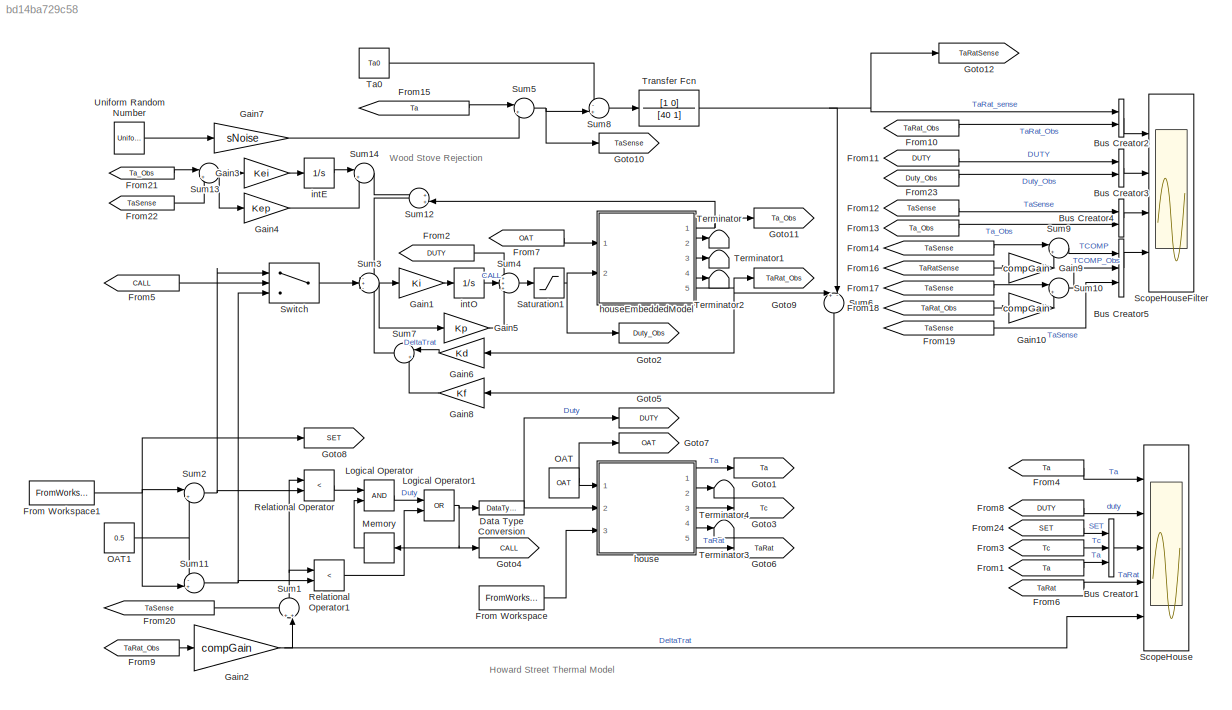
MODEL slx_bd14ba729c58
KIND model
CONFIG InitFcn = Ta0=Temp;\nTw0 = (Temp*Ha + OAT*Ho)/(Ho+Ha);\nTb0=max(min(interp1([Rn Rx],[Tn Tx],OAT), Tn),Tx);\nTc0 = ((Ha+Hc)*Ta0 - Ha*Tw0) / Hc;\nD0 =max(min( Hc*(Tc0-Ta0)/(Hf*(Tb0-Tc0)), 1), 1e-32);\n\n
CONFIG PreLoadFcn = OAT=30;\nTemp=68;\n\nRn=29;\nRx=69;\nTn=180;\nTx=120;\n\nHc=114/86400;\nHa=1.61/86400;\n%Hf=1.08/86400;\nHf=1.745/86400;\nHo=283/86400;\n\ntau=40;\nFILTER_DELAY = 5;\n\nK2=1;\nK3=1;\nKi=1e-5;\nKp=2;\nKd=800;\nKf=1;\ncompGain=400;  % gain in TCOMP of house control\nKei=Ki*2;\nKep=Kp*2;\n\n% From match to thermo20160128.xlsx\nsNoise=0.001;\nSET = [0 60 18861 18862; 68 62 68 68]';\notherHeat=[0 1000 6000; .0002 .001 .0005]';\ntFin...<+13ch>
BLOCK [BusCreator] Bus Creator1
  DisplayOption = bar
  Inputs = 3
  Ports = [3, 1]
BLOCK [BusCreator] Bus Creator2
  DisplayOption = bar
  Inputs = 2
  Ports = [2, 1]
BLOCK [BusCreator] Bus Creator3
  DisplayOption = bar
  Inputs = 2
  Ports = [2, 1]
BLOCK [BusCreator] Bus Creator4
  DisplayOption = bar
  Inputs = 2
  Ports = [2, 1]
BLOCK [BusCreator] Bus Creator5
  DisplayOption = bar
  Inputs = 3
  Ports = [3, 1]
BLOCK [DataTypeConversion] Data Type Conversion
  OutDataTypeStr = double
  RndMeth = Floor
  SaturateOnIntegerOverflow = off
BLOCK [FromWorkspace] From Workspace
  OutputAfterFinalValue = Holding final value
  SampleTime = 1
  VariableName = otherHeat
  ZeroCross = on
BLOCK [FromWorkspace] From Workspace1
  OutputAfterFinalValue = Holding final value
  SampleTime = 1
  VariableName = SET
  ZeroCross = on
BLOCK [From] From1
  GotoTag = Ta
  TagVisibility = global
BLOCK [From] From10
  GotoTag = TaRat_Obs
  TagVisibility = global
BLOCK [From] From11
  GotoTag = DUTY
  TagVisibility = global
BLOCK [From] From12
  GotoTag = TaSense
  TagVisibility = global
BLOCK [From] From13
  GotoTag = Ta_Obs
  TagVisibility = global
BLOCK [From] From14
  CloseFcn = tagdialog Close
  GotoTag = TaSense
  TagVisibility = global
BLOCK [From] From15
  CloseFcn = tagdialog Close
  GotoTag = Ta
  TagVisibility = global
BLOCK [From] From16
  CloseFcn = tagdialog Close
  GotoTag = TaRatSense
  TagVisibility = global
BLOCK [From] From17
  CloseFcn = tagdialog Close
  GotoTag = TaSense
  TagVisibility = global
BLOCK [From] From18
  CloseFcn = tagdialog Close
  GotoTag = TaRat_Obs
  TagVisibility = global
BLOCK [From] From19
  CloseFcn = tagdialog Close
  GotoTag = TaSense
  TagVisibility = global
BLOCK [From] From2
  GotoTag = DUTY
  TagVisibility = global
BLOCK [From] From20
  CloseFcn = tagdialog Close
  GotoTag = TaSense
  TagVisibility = global
BLOCK [From] From21
  GotoTag = Ta_Obs
  TagVisibility = global
BLOCK [From] From22
  CloseFcn = tagdialog Close
  GotoTag = TaSense
  TagVisibility = global
BLOCK [From] From23
  GotoTag = Duty_Obs
  TagVisibility = global
BLOCK [From] From24
  GotoTag = SET
  TagVisibility = global
BLOCK [From] From3
  GotoTag = Tc
  TagVisibility = global
BLOCK [From] From4
  GotoTag = Ta
  TagVisibility = global
BLOCK [From] From5
  GotoTag = CALL
  TagVisibility = global
BLOCK [From] From6
  GotoTag = TaRat
  TagVisibility = global
BLOCK [From] From7
  GotoTag = OAT
  TagVisibility = global
BLOCK [From] From8
  GotoTag = DUTY
  TagVisibility = global
BLOCK [From] From9
  GotoTag = TaRat_Obs
  TagVisibility = global
BLOCK [Gain] Gain1
  Gain = Ki
  OutDataTypeStr = Inherit: Inherit via internal rule
  ParamDataTypeStr = Inherit: Inherit via internal rule
  SaturateOnIntegerOverflow = off
BLOCK [Gain] Gain10
  Gain = compGain
  OutDataTypeStr = Inherit: Inherit via internal rule
  ParamDataTypeStr = Inherit: Inherit via internal rule
  SaturateOnIntegerOverflow = off
BLOCK [Gain] Gain2
  Gain = compGain
  OutDataTypeStr = Inherit: Inherit via internal rule
  ParamDataTypeStr = Inherit: Inherit via internal rule
  SaturateOnIntegerOverflow = off
BLOCK [Gain] Gain3
  Gain = Kei
  OutDataTypeStr = Inherit: Inherit via internal rule
  ParamDataTypeStr = Inherit: Inherit via internal rule
  SaturateOnIntegerOverflow = off
BLOCK [Gain] Gain4
  Gain = Kep
  OutDataTypeStr = Inherit: Inherit via internal rule
  ParamDataTypeStr = Inherit: Inherit via internal rule
  SaturateOnIntegerOverflow = off
BLOCK [Gain] Gain5
  Gain = Kp
  OutDataTypeStr = Inherit: Inherit via internal rule
  ParamDataTypeStr = Inherit: Inherit via internal rule
  SaturateOnIntegerOverflow = off
BLOCK [Gain] Gain6
  Gain = Kd
  OutDataTypeStr = Inherit: Inherit via internal rule
  ParamDataTypeStr = Inherit: Inherit via internal rule
  SaturateOnIntegerOverflow = off
BLOCK [Gain] Gain7
  Gain = sNoise
  OutDataTypeStr = Inherit: Inherit via internal rule
  ParamDataTypeStr = Inherit: Inherit via internal rule
  SaturateOnIntegerOverflow = off
BLOCK [Gain] Gain8
  Gain = Kf
  OutDataTypeStr = Inherit: Inherit via internal rule
  ParamDataTypeStr = Inherit: Inherit via internal rule
  SaturateOnIntegerOverflow = off
BLOCK [Gain] Gain9
  Gain = compGain
  OutDataTypeStr = Inherit: Inherit via internal rule
  ParamDataTypeStr = Inherit: Inherit via internal rule
  SaturateOnIntegerOverflow = off
BLOCK [Goto] Goto1
  GotoTag = Ta
  TagVisibility = global
BLOCK [Goto] Goto10
  GotoTag = TaSense
  TagVisibility = global
BLOCK [Goto] Goto11
  GotoTag = Ta_Obs
  TagVisibility = global
BLOCK [Goto] Goto12
  GotoTag = TaRatSense
  TagVisibility = global
BLOCK [Goto] Goto2
  GotoTag = Duty_Obs
  TagVisibility = global
BLOCK [Goto] Goto3
  GotoTag = Tc
  TagVisibility = global
BLOCK [Goto] Goto4
  GotoTag = CALL
  TagVisibility = global
BLOCK [Goto] Goto5
  GotoTag = DUTY
  TagVisibility = global
BLOCK [Goto] Goto6
  GotoTag = TaRat
  TagVisibility = global
BLOCK [Goto] Goto7
  GotoTag = OAT
  TagVisibility = global
BLOCK [Goto] Goto8
  GotoTag = SET
  TagVisibility = global
BLOCK [Goto] Goto9
  GotoTag = TaRat_Obs
  TagVisibility = global
BLOCK [Logic] Logical Operator
  AllPortsSameDT = off
  OutDataTypeStr = boolean
  Ports = [2, 1]
BLOCK [Logic] Logical Operator1
  AllPortsSameDT = off
  Operator = OR
  OutDataTypeStr = boolean
  Ports = [2, 1]
BLOCK [Memory] Memory
BLOCK [Constant] OAT
  Value = OAT
BLOCK [Constant] OAT1
  Value = 0.5
BLOCK [RelationalOperator] Relational Operator
  InputSameDT = off
  Operator = <
  OutDataTypeStr = boolean
  Ports = [2, 1]
BLOCK [RelationalOperator] Relational Operator1
  InputSameDT = off
  Operator = <
  OutDataTypeStr = boolean
  Ports = [2, 1]
BLOCK [Saturate] Saturation1
  InputPortMap = u0
  LowerLimit = 1e-32
  Ports = [1, 1]
  UpperLimit = 1.0
BLOCK [Scope] ScopeHouse
  DataFormat = StructureWithTime
  Decimation = 2
  Floating = off
  LegendLocations = 0.88577     0.91176    0.088861    0.031476\n 0.8777     0.72601    0.097622    0.031476\n0.89256     0.43163    0.098874    0.079979\n0.86617     0.35604     0.11014    0.031476\n0.85002     0.17183     0.12766    0.031476
  LimitDataPoints = off
  NumInputPorts = 5
  Ports = [5]
  SampleTime = 0
  ShowLegends = on
  YMax = 75~70~5~5~5
  YMin = -75~-40~-5~-5~-5
  ZoomMode = yonly
BLOCK [Scope] ScopeHouseFilter
  DataFormat = StructureWithTime
  Decimation = 2
  Floating = off
  LegendLocations = 0.84979     0.89866     0.12043    0.049861\n0.86657     0.66459     0.10365    0.049861\n0.87052      0.4319    0.099704    0.049861\n0.85077     0.17613     0.11945     0.07156
  LimitDataPoints = off
  NumInputPorts = 4
  Ports = [4]
  SampleTime = 0
  SaveName = ScopeData4
  ShowLegends = on
  YMax = 75~70~10~5
  YMin = -75~-40~-10~-5
BLOCK [Sum] Sum1
  IconShape = round
  InputSameDT = off
  Inputs = ++|
  OutDataTypeStr = Inherit: Inherit via internal rule
  Ports = [2, 1]
  SaturateOnIntegerOverflow = off
BLOCK [Sum] Sum10
  IconShape = round
  InputSameDT = off
  Inputs = |++
  OutDataTypeStr = Inherit: Inherit via internal rule
  Ports = [2, 1]
  SaturateOnIntegerOverflow = off
BLOCK [Sum] Sum11
  IconShape = round
  InputSameDT = off
  Inputs = -+|
  OutDataTypeStr = Inherit: Inherit via internal rule
  Ports = [2, 1]
  SaturateOnIntegerOverflow = off
BLOCK [Sum] Sum12
  IconShape = round
  InputSameDT = off
  Inputs = ++|
  OutDataTypeStr = Inherit: Inherit via internal rule
  Ports = [2, 1]
  SaturateOnIntegerOverflow = off
BLOCK [Sum] Sum13
  IconShape = round
  InputSameDT = off
  Inputs = |+-
  OutDataTypeStr = Inherit: Inherit via internal rule
  Ports = [2, 1]
  SaturateOnIntegerOverflow = off
BLOCK [Sum] Sum14
  IconShape = round
  InputSameDT = off
  Inputs = |++
  OutDataTypeStr = Inherit: Inherit via internal rule
  Ports = [2, 1]
  SaturateOnIntegerOverflow = off
BLOCK [Sum] Sum2
  IconShape = round
  InputSameDT = off
  Inputs = |++
  OutDataTypeStr = Inherit: Inherit via internal rule
  Ports = [2, 1]
  SaturateOnIntegerOverflow = off
BLOCK [Sum] Sum3
  IconShape = round
  InputSameDT = off
  Inputs = -+-
  OutDataTypeStr = Inherit: Inherit via internal rule
  Ports = [3, 1]
  SaturateOnIntegerOverflow = off
BLOCK [Sum] Sum4
  IconShape = round
  InputSameDT = off
  Inputs = +++
  OutDataTypeStr = Inherit: Inherit via internal rule
  Ports = [3, 1]
  SaturateOnIntegerOverflow = off
BLOCK [Sum] Sum5
  IconShape = round
  InputSameDT = off
  Inputs = |++
  OutDataTypeStr = Inherit: Inherit via internal rule
  Ports = [2, 1]
  SaturateOnIntegerOverflow = off
BLOCK [Sum] Sum6
  IconShape = round
  InputSameDT = off
  Inputs = +-|
  OutDataTypeStr = Inherit: Inherit via internal rule
  Ports = [2, 1]
  SaturateOnIntegerOverflow = off
BLOCK [Sum] Sum7
  IconShape = round
  InputSameDT = off
  Inputs = |++
  OutDataTypeStr = Inherit: Inherit via internal rule
  Ports = [2, 1]
  SaturateOnIntegerOverflow = off
BLOCK [Sum] Sum8
  IconShape = round
  InputSameDT = off
  Inputs = -+|
  OutDataTypeStr = Inherit: Inherit via internal rule
  Ports = [2, 1]
  SaturateOnIntegerOverflow = off
BLOCK [Sum] Sum9
  IconShape = round
  InputSameDT = off
  Inputs = |++
  OutDataTypeStr = Inherit: Inherit via internal rule
  Ports = [2, 1]
  SaturateOnIntegerOverflow = off
BLOCK [Switch] Switch
  Criteria = u2 ~= 0
  InputSameDT = off
  SaturateOnIntegerOverflow = off
BLOCK [Constant] Ta0
  Value = Ta0
BLOCK [Terminator] Terminator
BLOCK [Terminator] Terminator1
BLOCK [Terminator] Terminator2
BLOCK [Terminator] Terminator3
BLOCK [Terminator] Terminator4
BLOCK [TransferFcn] Transfer Fcn
  Denominator = [40 1]
  Numerator = [1 0]
BLOCK [UniformRandomNumber] Uniform Random Number
  SampleTime = FILTER_DELAY
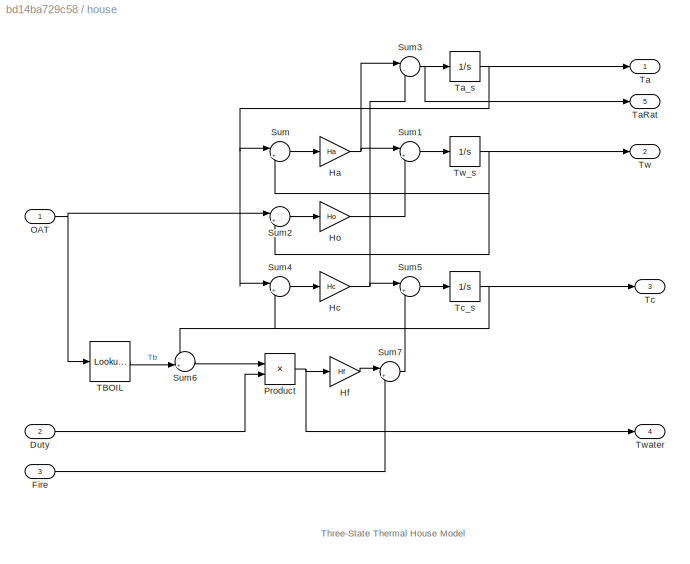
BLOCK [SubSystem] house
  FunctionWithSeparateData = off
  MaskHideContents = off
  MinAlgLoopOccurrences = off
  Opaque = off
  Ports = [3, 5]
  PropExecContextOutsideSubsystem = off
  RTWSystemCode = Auto
  RequestExecContextInheritance = off
BLOCK [Inport] house/Duty
  IconDisplay = Port number
  Port = 2
BLOCK [Inport] house/Fire
  IconDisplay = Port number
  Port = 3
BLOCK [Gain] house/Ha
  Gain = Ha
  OutDataTypeStr = Inherit: Inherit via internal rule
  ParamDataTypeStr = Inherit: Inherit via internal rule
  SaturateOnIntegerOverflow = off
BLOCK [Gain] house/Hc
  Gain = Hc
  OutDataTypeStr = Inherit: Inherit via internal rule
  ParamDataTypeStr = Inherit: Inherit via internal rule
  SaturateOnIntegerOverflow = off
BLOCK [Gain] house/Hf
  Gain = Hf
  OutDataTypeStr = Inherit: Inherit via internal rule
  ParamDataTypeStr = Inherit: Inherit via internal rule
  SaturateOnIntegerOverflow = off
BLOCK [Gain] house/Ho
  Gain = Ho
  OutDataTypeStr = Inherit: Inherit via internal rule
  ParamDataTypeStr = Inherit: Inherit via internal rule
  SaturateOnIntegerOverflow = off
BLOCK [Inport] house/OAT
  IconDisplay = Port number
BLOCK [Product] house/Product
  InputSameDT = off
  OutDataTypeStr = Inherit: Inherit via internal rule
  Ports = [2, 1]
  RndMeth = Floor
  SaturateOnIntegerOverflow = off
BLOCK [Sum] house/Sum
  IconShape = round
  InputSameDT = off
  Inputs = |+-
  OutDataTypeStr = Inherit: Inherit via internal rule
  Ports = [2, 1]
  SaturateOnIntegerOverflow = off
BLOCK [Sum] house/Sum1
  IconShape = round
  InputSameDT = off
  Inputs = |++
  OutDataTypeStr = Inherit: Inherit via internal rule
  Ports = [2, 1]
  SaturateOnIntegerOverflow = off
BLOCK [Sum] house/Sum2
  IconShape = round
  InputSameDT = off
  Inputs = |+-
  OutDataTypeStr = Inherit: Inherit via internal rule
  Ports = [2, 1]
  SaturateOnIntegerOverflow = off
BLOCK [Sum] house/Sum3
  IconShape = round
  InputSameDT = off
  Inputs = |--
  OutDataTypeStr = Inherit: Inherit via internal rule
  Ports = [2, 1]
  SaturateOnIntegerOverflow = off
BLOCK [Sum] house/Sum4
  IconShape = round
  InputSameDT = off
  Inputs = |+-
  OutDataTypeStr = Inherit: Inherit via internal rule
  Ports = [2, 1]
  SaturateOnIntegerOverflow = off
BLOCK [Sum] house/Sum5
  IconShape = round
  InputSameDT = off
  Inputs = |++
  OutDataTypeStr = Inherit: Inherit via internal rule
  Ports = [2, 1]
  SaturateOnIntegerOverflow = off
BLOCK [Sum] house/Sum6
  IconShape = round
  InputSameDT = off
  Inputs = -+|
  OutDataTypeStr = Inherit: Inherit via internal rule
  Ports = [2, 1]
  SaturateOnIntegerOverflow = off
BLOCK [Sum] house/Sum7
  IconShape = round
  InputSameDT = off
  Inputs = |++
  OutDataTypeStr = Inherit: Inherit via internal rule
  Ports = [2, 1]
  SaturateOnIntegerOverflow = off
BLOCK [Lookup_n-D] house/TBOIL
  BreakpointsForDimension1 = [Rn Rx]
  ExtrapMethod = Clip
  NumberOfTableDimensions = 1
  Ports = [1, 1]
  RndMeth = Simplest
  Table = [Tn Tx]
BLOCK [Outport] house/Ta
  IconDisplay = Port number
BLOCK [Outport] house/TaRat
  IconDisplay = Port number
  Port = 5
BLOCK [Integrator] house/Ta_s
  InitialCondition = Ta0
  Ports = [1, 1]
BLOCK [Outport] house/Tc
  IconDisplay = Port number
  Port = 3
BLOCK [Integrator] house/Tc_s
  InitialCondition = Tc0
  Ports = [1, 1]
BLOCK [Outport] house/Tw
  IconDisplay = Port number
  Port = 2
BLOCK [Integrator] house/Tw_s
  InitialCondition = Tw0
  Ports = [1, 1]
BLOCK [Outport] house/Twater
  IconDisplay = Port number
  Port = 4
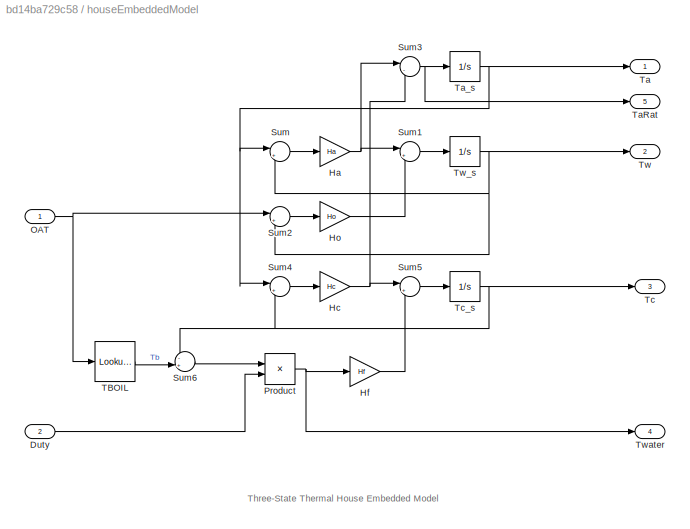
BLOCK [SubSystem] houseEmbeddedModel
  FunctionWithSeparateData = off
  MaskHideContents = off
  MinAlgLoopOccurrences = off
  Opaque = off
  Ports = [2, 5]
  PropExecContextOutsideSubsystem = off
  RTWSystemCode = Auto
  RequestExecContextInheritance = off
BLOCK [Inport] houseEmbeddedModel/Duty
  IconDisplay = Port number
  Port = 2
BLOCK [Gain] houseEmbeddedModel/Ha
  Gain = Ha
  OutDataTypeStr = Inherit: Inherit via internal rule
  ParamDataTypeStr = Inherit: Inherit via internal rule
  SaturateOnIntegerOverflow = off
BLOCK [Gain] houseEmbeddedModel/Hc
  Gain = Hc
  OutDataTypeStr = Inherit: Inherit via internal rule
  ParamDataTypeStr = Inherit: Inherit via internal rule
  SaturateOnIntegerOverflow = off
BLOCK [Gain] houseEmbeddedModel/Hf
  Gain = Hf
  OutDataTypeStr = Inherit: Inherit via internal rule
  ParamDataTypeStr = Inherit: Inherit via internal rule
  SaturateOnIntegerOverflow = off
BLOCK [Gain] houseEmbeddedModel/Ho
  Gain = Ho
  OutDataTypeStr = Inherit: Inherit via internal rule
  ParamDataTypeStr = Inherit: Inherit via internal rule
  SaturateOnIntegerOverflow = off
BLOCK [Inport] houseEmbeddedModel/OAT
  IconDisplay = Port number
BLOCK [Product] houseEmbeddedModel/Product
  InputSameDT = off
  OutDataTypeStr = Inherit: Inherit via internal rule
  Ports = [2, 1]
  RndMeth = Floor
  SaturateOnIntegerOverflow = off
BLOCK [Sum] houseEmbeddedModel/Sum
  IconShape = round
  InputSameDT = off
  Inputs = |+-
  OutDataTypeStr = Inherit: Inherit via internal rule
  Ports = [2, 1]
  SaturateOnIntegerOverflow = off
BLOCK [Sum] houseEmbeddedModel/Sum1
  IconShape = round
  InputSameDT = off
  Inputs = |++
  OutDataTypeStr = Inherit: Inherit via internal rule
  Ports = [2, 1]
  SaturateOnIntegerOverflow = off
BLOCK [Sum] houseEmbeddedModel/Sum2
  IconShape = round
  InputSameDT = off
  Inputs = |+-
  OutDataTypeStr = Inherit: Inherit via internal rule
  Ports = [2, 1]
  SaturateOnIntegerOverflow = off
BLOCK [Sum] houseEmbeddedModel/Sum3
  IconShape = round
  InputSameDT = off
  Inputs = |--
  OutDataTypeStr = Inherit: Inherit via internal rule
  Ports = [2, 1]
  SaturateOnIntegerOverflow = off
BLOCK [Sum] houseEmbeddedModel/Sum4
  IconShape = round
  InputSameDT = off
  Inputs = |+-
  OutDataTypeStr = Inherit: Inherit via internal rule
  Ports = [2, 1]
  SaturateOnIntegerOverflow = off
BLOCK [Sum] houseEmbeddedModel/Sum5
  IconShape = round
  InputSameDT = off
  Inputs = |++
  OutDataTypeStr = Inherit: Inherit via internal rule
  Ports = [2, 1]
  SaturateOnIntegerOverflow = off
BLOCK [Sum] houseEmbeddedModel/Sum6
  IconShape = round
  InputSameDT = off
  Inputs = -+|
  OutDataTypeStr = Inherit: Inherit via internal rule
  Ports = [2, 1]
  SaturateOnIntegerOverflow = off
BLOCK [Lookup_n-D] houseEmbeddedModel/TBOIL
  BreakpointsForDimension1 = [Rn Rx]
  ExtrapMethod = Clip
  NumberOfTableDimensions = 1
  Ports = [1, 1]
  RndMeth = Simplest
  Table = [Tn Tx]
BLOCK [Outport] houseEmbeddedModel/Ta
  IconDisplay = Port number
BLOCK [Outport] houseEmbeddedModel/TaRat
  IconDisplay = Port number
  Port = 5
BLOCK [Integrator] houseEmbeddedModel/Ta_s
  InitialCondition = Ta0
  Ports = [1, 1]
BLOCK [Outport] houseEmbeddedModel/Tc
  IconDisplay = Port number
  Port = 3
BLOCK [Integrator] houseEmbeddedModel/Tc_s
  InitialCondition = Tc0
  Ports = [1, 1]
BLOCK [Outport] houseEmbeddedModel/Tw
  IconDisplay = Port number
  Port = 2
BLOCK [Integrator] houseEmbeddedModel/Tw_s
  InitialCondition = Tw0
  Ports = [1, 1]
BLOCK [Outport] houseEmbeddedModel/Twater
  IconDisplay = Port number
  Port = 4
BLOCK [Integrator] intE
  LimitOutput = on
  LowerSaturationLimit = -10
  Ports = [1, 1]
  UpperSaturationLimit = 10
BLOCK [Integrator] intO
  LimitOutput = on
  LowerSaturationLimit = -1
  Ports = [1, 1]
  UpperSaturationLimit = 1
ANNOTATION (root): Howard Street Thermal Model
ANNOTATION (root): Wood Stove Rejection
ANNOTATION house: Three-State Thermal House Model
ANNOTATION houseEmbeddedModel: Three-State Thermal House Embedded Model
LINE Bus Creator1:1 -> ScopeHouse:3
LINE Bus Creator2:1 -> ScopeHouseFilter:1
LINE Bus Creator3:1 -> ScopeHouseFilter:2
LINE Bus Creator4:1 -> ScopeHouseFilter:3
LINE Bus Creator5:1 -> ScopeHouseFilter:4
NET Data Type Conversion:1 -> Goto5:1, house:2
NET From Workspace1:1 -> Goto8:1, Sum11:2, Sum2:1
LINE From Workspace:1 -> house:3
LINE From10:1 -> Bus Creator2:2
LINE From11:1 -> Bus Creator3:1
LINE From12:1 -> Bus Creator4:1
LINE From13:1 -> Bus Creator4:2
LINE From14:1 -> Sum9:1
LINE From15:1 -> Sum5:1
LINE From16:1 -> Gain9:1
LINE From17:1 -> Sum10:1
LINE From18:1 -> Gain10:1
LINE From19:1 -> Bus Creator5:3
LINE From1:1 -> Bus Creator1:3
LINE From20:1 -> Sum1:1
LINE From21:1 -> Sum13:1
LINE From22:1 -> Sum13:2
LINE From23:1 -> Bus Creator3:2
LINE From24:1 -> Bus Creator1:1
LINE From2:1 -> Sum4:1
LINE From3:1 -> Bus Creator1:2
LINE From4:1 -> ScopeHouse:1
LINE From5:1 -> Switch:2
LINE From6:1 -> ScopeHouse:4
LINE From7:1 -> houseEmbeddedModel:1
LINE From8:1 -> ScopeHouse:2
LINE From9:1 -> Gain2:1
LINE Gain10:1 -> Sum10:2
LINE Gain1:1 -> intO:1
NET Gain2:1 -> ScopeHouse:5, Sum1:2
LINE Gain3:1 -> intE:1
LINE Gain4:1 -> Sum14:2
LINE Gain5:1 -> Sum4:3
LINE Gain6:1 -> Sum7:1
LINE Gain7:1 -> Sum5:2
LINE Gain8:1 -> Sum7:2
LINE Gain9:1 -> Sum9:2
NET Logical Operator1:1 -> Data Type Conversion:1, Goto4:1, Memory:1
LINE Logical Operator:1 -> Logical Operator1:1
LINE Memory:1 -> Logical Operator:2
NET OAT1:1 -> Sum11:1, Sum2:2
NET OAT:1 -> Goto7:1, house:1
LINE Relational Operator1:1 -> Logical Operator1:2
LINE Relational Operator:1 -> Logical Operator:1
NET Saturation1:1 -> Goto2:1, houseEmbeddedModel:2
LINE Sum10:1 -> Bus Creator5:2
NET Sum11:1 -> Relational Operator1:2, Switch:3
LINE Sum12:1 -> Sum3:1
NET Sum13:1 -> Gain3:1, Gain4:1
LINE Sum14:1 -> Sum12:1
NET Sum1:1 -> Relational Operator1:1, Relational Operator:1
NET Sum2:1 -> Relational Operator:2, Switch:1
NET Sum3:1 -> Gain1:1, Gain5:1
LINE Sum4:1 -> Saturation1:1
NET Sum5:1 -> Goto10:1, Sum8:2
LINE Sum6:1 -> Gain8:1
LINE Sum7:1 -> Sum3:3
LINE Sum8:1 -> Transfer Fcn:1
LINE Sum9:1 -> Bus Creator5:1
LINE Switch:1 -> Sum3:2
LINE Ta0:1 -> Sum8:1
NET Transfer Fcn:1 -> Bus Creator2:1, Goto12:1, Sum6:2
LINE Uniform Random Number:1 -> Gain7:1
LINE house/Duty:1 -> house/Product:2
LINE house/Fire:1 -> house/Sum7:2
NET house/Ha:1 -> house/Sum1:1, house/Sum3:1
NET house/Hc:1 -> house/Sum3:2, house/Sum5:1
LINE house/Hf:1 -> house/Sum7:1
LINE house/Ho:1 -> house/Sum1:2
NET house/OAT:1 -> house/Sum2:1, house/TBOIL:1
NET house/Product:1 -> house/Hf:1, house/Twater:1
LINE house/Sum1:1 -> house/Tw_s:1
LINE house/Sum2:1 -> house/Ho:1
NET house/Sum3:1 -> house/TaRat:1, house/Ta_s:1
LINE house/Sum4:1 -> house/Hc:1
LINE house/Sum5:1 -> house/Tc_s:1
LINE house/Sum6:1 -> house/Product:1
LINE house/Sum7:1 -> house/Sum5:2
LINE house/Sum:1 -> house/Ha:1
LINE house/TBOIL:1 -> house/Sum6:2
NET house/Ta_s:1 -> house/Sum4:1, house/Sum:1, house/Ta:1
NET house/Tc_s:1 -> house/Sum4:2, house/Sum6:1, house/Tc:1
NET house/Tw_s:1 -> house/Sum2:2, house/Sum:2, house/Tw:1
LINE house:1 -> Goto1:1
LINE house:2 -> Terminator4:1
LINE house:3 -> Goto3:1
LINE house:4 -> Terminator3:1
LINE house:5 -> Goto6:1
LINE houseEmbeddedModel/Duty:1 -> houseEmbeddedModel/Product:2
NET houseEmbeddedModel/Ha:1 -> houseEmbeddedModel/Sum1:1, houseEmbeddedModel/Sum3:1
NET houseEmbeddedModel/Hc:1 -> houseEmbeddedModel/Sum3:2, houseEmbeddedModel/Sum5:1
LINE houseEmbeddedModel/Hf:1 -> houseEmbeddedModel/Sum5:2
LINE houseEmbeddedModel/Ho:1 -> houseEmbeddedModel/Sum1:2
NET houseEmbeddedModel/OAT:1 -> houseEmbeddedModel/Sum2:1, houseEmbeddedModel/TBOIL:1
NET houseEmbeddedModel/Product:1 -> houseEmbeddedModel/Hf:1, houseEmbeddedModel/Twater:1
LINE houseEmbeddedModel/Sum1:1 -> houseEmbeddedModel/Tw_s:1
LINE houseEmbeddedModel/Sum2:1 -> houseEmbeddedModel/Ho:1
NET houseEmbeddedModel/Sum3:1 -> houseEmbeddedModel/TaRat:1, houseEmbeddedModel/Ta_s:1
LINE houseEmbeddedModel/Sum4:1 -> houseEmbeddedModel/Hc:1
LINE houseEmbeddedModel/Sum5:1 -> houseEmbeddedModel/Tc_s:1
LINE houseEmbeddedModel/Sum6:1 -> houseEmbeddedModel/Product:1
LINE houseEmbeddedModel/Sum:1 -> houseEmbeddedModel/Ha:1
LINE houseEmbeddedModel/TBOIL:1 -> houseEmbeddedModel/Sum6:2
NET houseEmbeddedModel/Ta_s:1 -> houseEmbeddedModel/Sum4:1, houseEmbeddedModel/Sum:1, houseEmbeddedModel/Ta:1
NET houseEmbeddedModel/Tc_s:1 -> houseEmbeddedModel/Sum4:2, houseEmbeddedModel/Sum6:1, houseEmbeddedModel/Tc:1
NET houseEmbeddedModel/Tw_s:1 -> houseEmbeddedModel/Sum2:2, houseEmbeddedModel/Sum:2, houseEmbeddedModel/Tw:1
NET houseEmbeddedModel:1 -> Goto11:1, Sum12:2
LINE houseEmbeddedModel:2 -> Terminator:1
LINE houseEmbeddedModel:3 -> Terminator1:1
LINE houseEmbeddedModel:4 -> Terminator2:1
NET houseEmbeddedModel:5 -> Gain6:1, Goto9:1, Sum6:1
LINE intE:1 -> Sum14:1
LINE intO:1 -> Sum4:2
note: NET lines group one-source signal fan-out (src -> all destinations, sorted); 1:1 wires keep LINE
